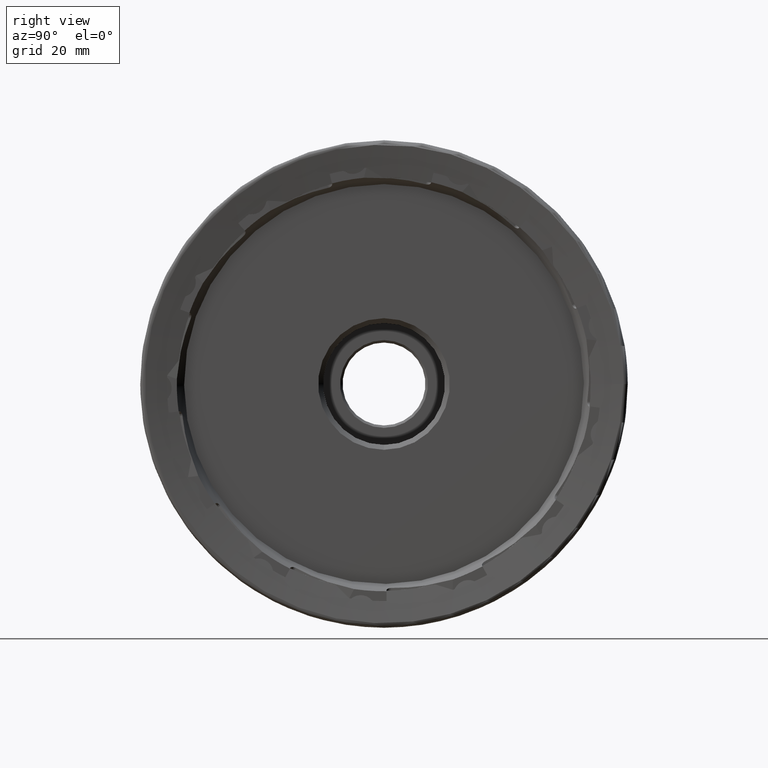
[diagram: clean part render]
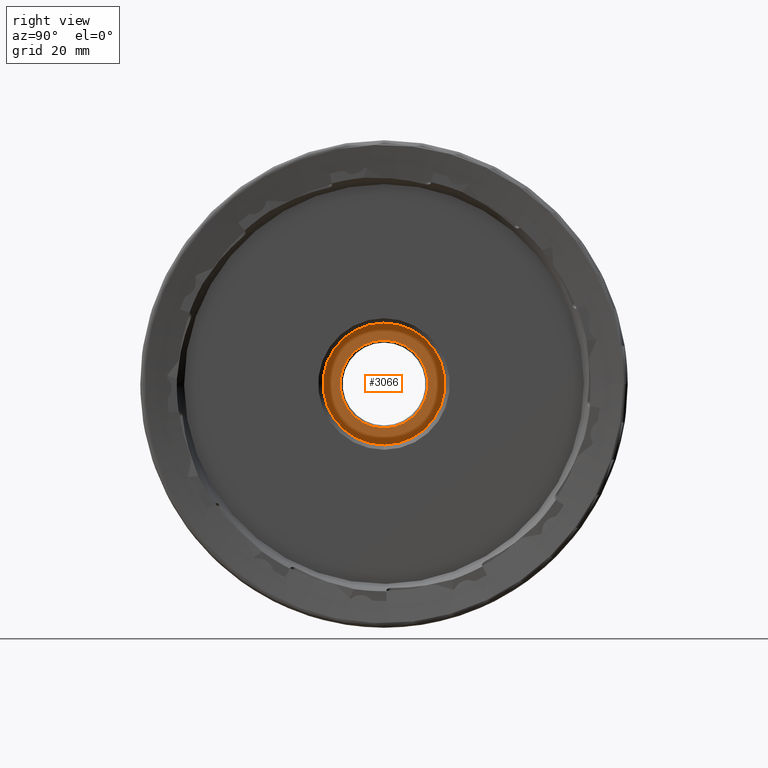
[diagram: same view with one face highlighted and labeled with its STEP entity id]
A machine part, right view. The second image highlights one B-rep face of the part: STEP entity #3066.
In plain terms, the highlighted planar face has unit normal (-1, 0, 0).
Its self-contained STEP definition (entity closure, byte-faithful):
#187 = CARTESIAN_POINT ( 'NONE',  ( -18.50000000000001100, 12.49999999999999800, 0.0000000000000000000 ) ) ;
#914 = DIRECTION ( 'NONE',  ( -1.000000000000000000, 0.0000000000000000000, 0.0000000000000000000 ) ) ;
#2181 = PLANE ( 'NONE',  #12154 ) ;
#2518 = CARTESIAN_POINT ( 'NONE',  ( -18.50000000000001100, 0.0000000000000000000, 9.000000000000007100 ) ) ;
#3066 = ADVANCED_FACE ( 'NONE', ( #8888, #9207 ), #2181, .F. ) ;
#3174 = DIRECTION ( 'NONE',  ( 0.0000000000000000000, 0.0000000000000000000, 1.000000000000000000 ) ) ;
#3339 = VERTEX_POINT ( 'NONE', #6397 ) ;
#4311 = EDGE_LOOP ( 'NONE', ( #12389 ) ) ;
#4848 = CARTESIAN_POINT ( 'NONE',  ( -18.50000000000001100, 0.0000000000000000000, 0.0000000000000000000 ) ) ;
#5156 = EDGE_CURVE ( 'NONE', #3339, #3339, #5667, .T. ) ;
#5667 = CIRCLE ( 'NONE', #12766, 12.49999999999999800 ) ;
#5869 = DIRECTION ( 'NONE',  ( 0.0000000000000000000, 0.0000000000000000000, -1.000000000000000000 ) ) ;
#6397 = CARTESIAN_POINT ( 'NONE',  ( -18.50000000000001100, 0.0000000000000000000, -12.49999999999999800 ) ) ;
#6596 = ORIENTED_EDGE ( 'NONE', *, *, #8351, .T. ) ;
#6846 = CARTESIAN_POINT ( 'NONE',  ( -18.50000000000001100, 0.0000000000000000000, 0.0000000000000000000 ) ) ;
#7368 = VERTEX_POINT ( 'NONE', #2518 ) ;
#7749 = CIRCLE ( 'NONE', #9549, 9.000000000000007100 ) ;
#7875 = DIRECTION ( 'NONE',  ( 0.0000000000000000000, 0.0000000000000000000, 1.000000000000000000 ) ) ;
#8351 = EDGE_CURVE ( 'NONE', #7368, #7368, #7749, .T. ) ;
#8888 = FACE_BOUND ( 'NONE', #9438, .T. ) ;
#9146 = DIRECTION ( 'NONE',  ( -1.000000000000000000, 0.0000000000000000000, 0.0000000000000000000 ) ) ;
#9207 = FACE_OUTER_BOUND ( 'NONE', #4311, .T. ) ;
#9438 = EDGE_LOOP ( 'NONE', ( #6596 ) ) ;
#9549 = AXIS2_PLACEMENT_3D ( 'NONE', #6846, #914, #7875 ) ;
#11839 = DIRECTION ( 'NONE',  ( 1.000000000000000000, -0.0000000000000000000, -0.0000000000000000000 ) ) ;
#12154 = AXIS2_PLACEMENT_3D ( 'NONE', #187, #9146, #3174 ) ;
#12389 = ORIENTED_EDGE ( 'NONE', *, *, #5156, .T. ) ;
#12766 = AXIS2_PLACEMENT_3D ( 'NONE', #4848, #11839, #5869 ) ;